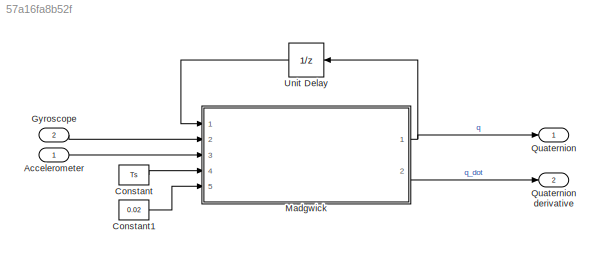
MODEL slx_57a16fa8b52f
KIND model
CONFIG AbsTol = auto
CONFIG EnableMultiTasking = off
CONFIG FixedStep = auto
CONFIG InitFcn = Parameters_Estimators\nParameters_Simulation
CONFIG MaxStep = auto
CONFIG MinStep = auto
CONFIG PreLoadFcn = modelDir = fileparts(get_param(bdroot, 'FileName'));\naddpath(fullfile(modelDir,'../../Parameters'));\naddpath(fullfile(modelDir,'../../Estimators/Madgwick'));\n\nParameters_Estimators\nParameters_Simulation
CONFIG RelTol = 1e-3
CONFIG SampleTimeConstraint = Unconstrained
CONFIG Solver = FixedStepAuto
CONFIG SolverName = FixedStepAuto
CONFIG StartTime = 0.0
CONFIG StopTime = 10.0
BLOCK [Inport] Accelerometer
  IconDisplay = Port number
BLOCK [Constant] Constant
  Value = Ts
BLOCK [Constant] Constant1
  Value = 0.02
BLOCK [Inport] Gyroscope
  IconDisplay = Port number
  Port = 2
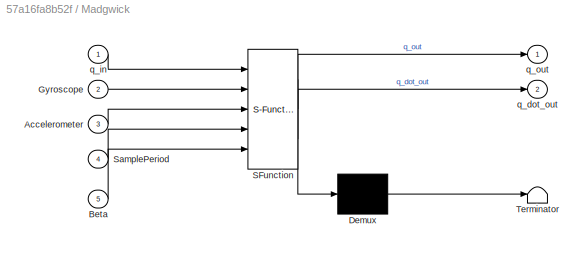
BLOCK [SubSystem] Madgwick
  ErrorFcn = Stateflow.Translate.translate
  PermitHierarchicalResolution = ExplicitOnly
  Ports = [5, 2]
  RequestExecContextInheritance = off
  SFBlockType = MATLAB Function
  TreatAsAtomicUnit = on
BLOCK [Demux] Madgwick/ Demux 
  Outputs = 1
  Ports = [1, 1]
BLOCK [S-Function] Madgwick/ SFunction 
  EnableBusSupport = on
  FunctionName = sf_sfun
  PortCounts = [5 3]
  Ports = [5, 3]
  SFcnIsStateOwnerBlock = off
  SFunctionDeploymentMode = off
  Tag = Stateflow S-Function Madgwick 16
BLOCK [Terminator] Madgwick/ Terminator 
BLOCK [Inport] Madgwick/Accelerometer
  IconDisplay = Port number
  Port = 3
BLOCK [Inport] Madgwick/Beta
  IconDisplay = Port number
  Port = 5
BLOCK [Inport] Madgwick/Gyroscope
  IconDisplay = Port number
  Port = 2
BLOCK [Inport] Madgwick/SamplePeriod
  IconDisplay = Port number
  Port = 4
BLOCK [Outport] Madgwick/q_dot_out
  IconDisplay = Port number
  Port = 2
BLOCK [Inport] Madgwick/q_in
  IconDisplay = Port number
BLOCK [Outport] Madgwick/q_out
  IconDisplay = Port number
BLOCK [Outport] Quaternion
  IconDisplay = Port number
BLOCK [Outport] Quaternion derivative
  IconDisplay = Port number
  Port = 2
BLOCK [UnitDelay] Unit Delay
  InitialCondition = est_q_init
  InputProcessing = Elements as channels (sample based)
  SampleTime = Ts
LINE Accelerometer:1 -> Madgwick:3
LINE Constant1:1 -> Madgwick:5
LINE Constant:1 -> Madgwick:4
LINE Gyroscope:1 -> Madgwick:2
NET Madgwick:1 -> Quaternion:1, Unit Delay:1
LINE Madgwick:2 -> Quaternion derivative:1
LINE Unit Delay:1 -> Madgwick:1
note: NET lines group one-source signal fan-out (src -> all destinations, sorted); 1:1 wires keep LINE
CHART Madgwick states=1 transitions=1
  STATE_LABEL 'eML_blk_kernel()'
  STATE_LABEL "SCRIPT:\nfunction [q_out, q_dot_out] = MadgwickAHRS(q_in, Gyroscope, Accelerometer, SamplePeriod, Beta)           \n    \n    q = q_in';    \n\n    % Normalise accelerometer measurement\n    if(norm(Accelerometer) == 0)\n        disp('ERROR - NaN in Madgwick');\n        q_out = q';\n        q_dot_out = [0,0,0,0]';\n        return;\n    end\t% handle NaN\n    Accelerometer = Accelerometer / norm(Accelerometer);...<+1530ch>"
